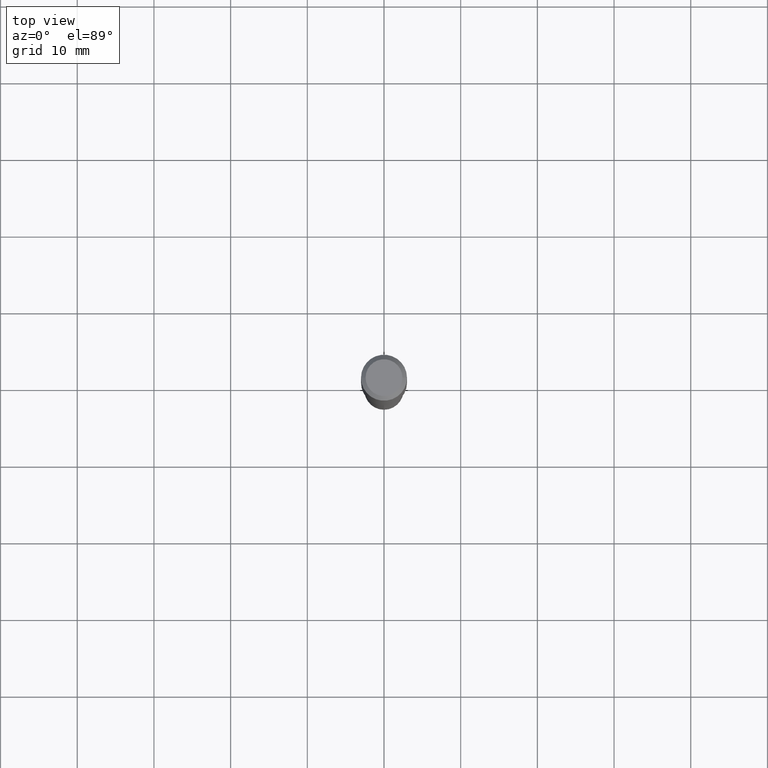
[diagram: clean part render]
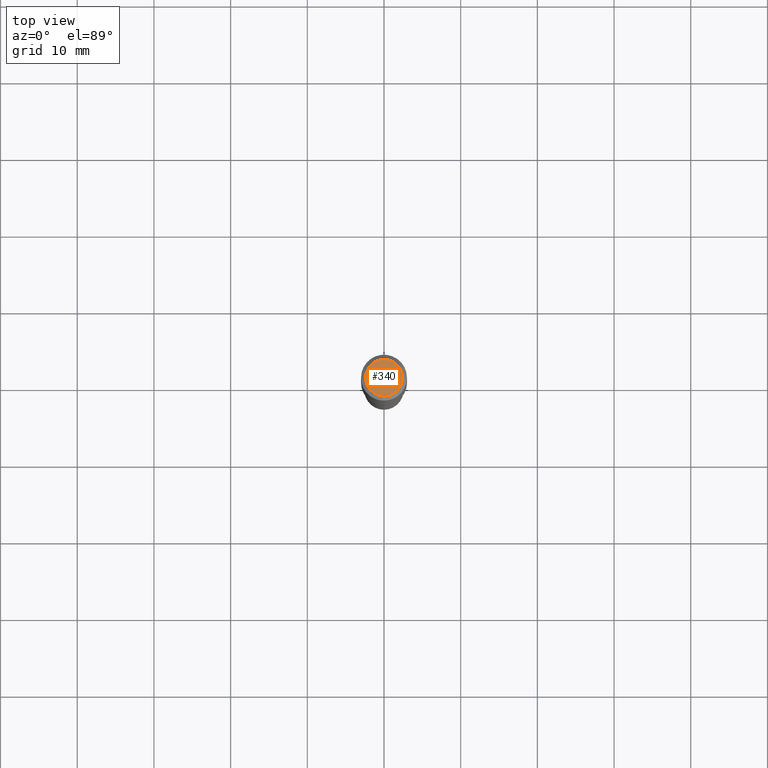
[diagram: same view with one face highlighted and labeled with its STEP entity id]
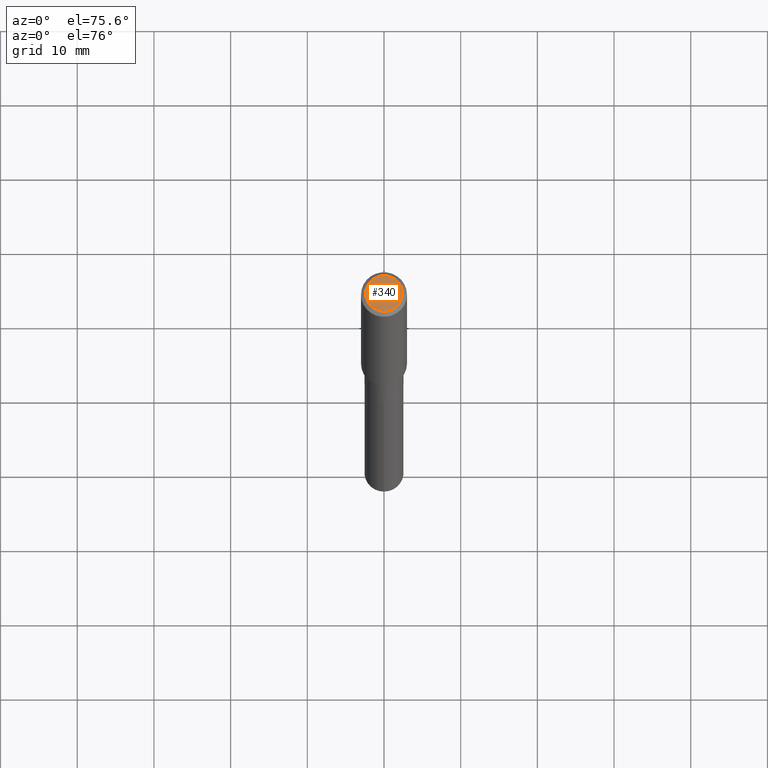
[diagram: same view with one face highlighted and labeled with its STEP entity id]
A machine part, top view. The second image highlights one B-rep face of the part: STEP entity #340.
A second angle (auxiliary view) of the same face is appended — the face is thin or edge-on in the first view.
In plain terms, the highlighted planar face has unit normal (0, -0, -1).
Its self-contained STEP definition (entity closure, byte-faithful):
#4 = VERTEX_POINT ( 'NONE', #230 ) ;
#40 = CARTESIAN_POINT ( 'NONE',  ( 2.358133508849003952E-46, -3.366789680499277518E-32, -9.642868896486260050E-18 ) ) ;
#71 = EDGE_CURVE ( 'NONE', #4, #78, #218, .T. ) ;
#78 = VERTEX_POINT ( 'NONE', #465 ) ;
#111 = ORIENTED_EDGE ( 'NONE', *, *, #71, .T. ) ;
#137 = FACE_OUTER_BOUND ( 'NONE', #308, .T. ) ;
#166 = DIRECTION ( 'NONE',  ( -1.000000000000000000, 6.982962677686265922E-15, -4.876176775795935793E-29 ) ) ;
#193 = DIRECTION ( 'NONE',  ( 1.000000000000000000, -6.982962677686267499E-15, 4.875432709231658792E-29 ) ) ;
#201 = DIRECTION ( 'NONE',  ( 1.000000000000000000, -6.982962677686267499E-15, 4.875432709231658792E-29 ) ) ;
#208 = PLANE ( 'NONE',  #466 ) ;
#218 = CIRCLE ( 'NONE', #376, 0.09447999999999998066 ) ;
#223 = DIRECTION ( 'NONE',  ( -2.445468806185136597E-29, 3.491481338843145583E-15, 1.000000000000000000 ) ) ;
#230 = CARTESIAN_POINT ( 'NONE',  ( 0.09447999999999998066, -7.704367267948738690E-16, -1.928573779296752193E-17 ) ) ;
#251 = AXIS2_PLACEMENT_3D ( 'NONE', #288, #433, #201 ) ;
#276 = CARTESIAN_POINT ( 'NONE',  ( 4.716267017698007905E-46, -6.733579360998555036E-32, -1.928573779297252010E-17 ) ) ;
#288 = CARTESIAN_POINT ( 'NONE',  ( 4.716267017698007905E-46, -6.733579360998555036E-32, -1.928573779297252010E-17 ) ) ;
#308 = EDGE_LOOP ( 'NONE', ( #419, #111 ) ) ;
#340 = ADVANCED_FACE ( 'NONE', ( #137 ), #208, .F. ) ;
#362 = DIRECTION ( 'NONE',  ( 2.438088387897960049E-29, -3.491481338843145188E-15, -1.000000000000000000 ) ) ;
#376 = AXIS2_PLACEMENT_3D ( 'NONE', #276, #223, #193 ) ;
#403 = CIRCLE ( 'NONE', #251, 0.09447999999999998066 ) ;
#419 = ORIENTED_EDGE ( 'NONE', *, *, #449, .T. ) ;
#433 = DIRECTION ( 'NONE',  ( -2.445468806185136597E-29, 3.491481338843145583E-15, 1.000000000000000000 ) ) ;
#449 = EDGE_CURVE ( 'NONE', #78, #4, #403, .T. ) ;
#465 = CARTESIAN_POINT ( 'NONE',  ( -0.09447999999999998066, 7.009847083995354710E-16, -1.928573779297727792E-17 ) ) ;
#466 = AXIS2_PLACEMENT_3D ( 'NONE', #40, #362, #166 ) ;